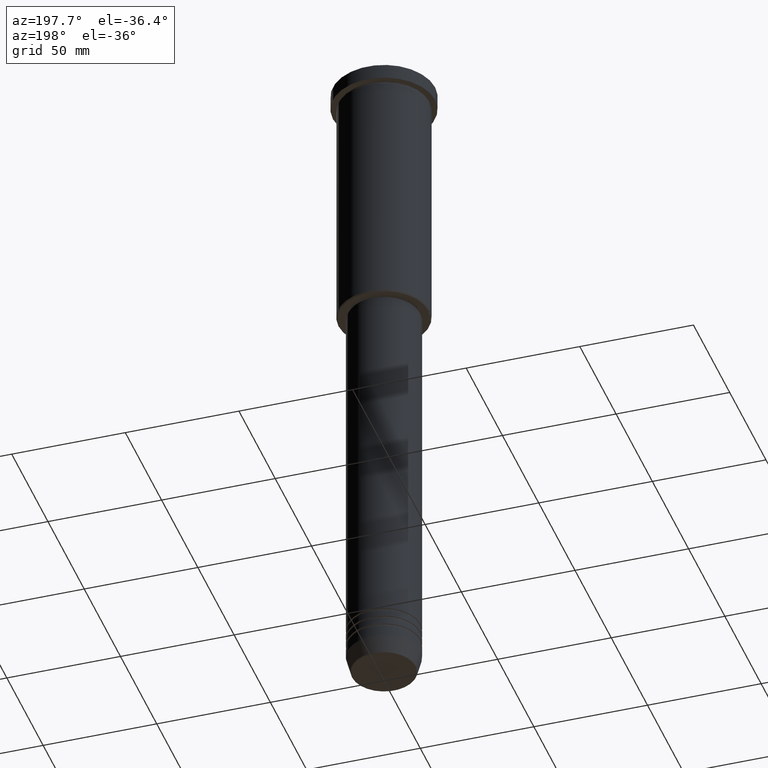
[diagram: clean part render]
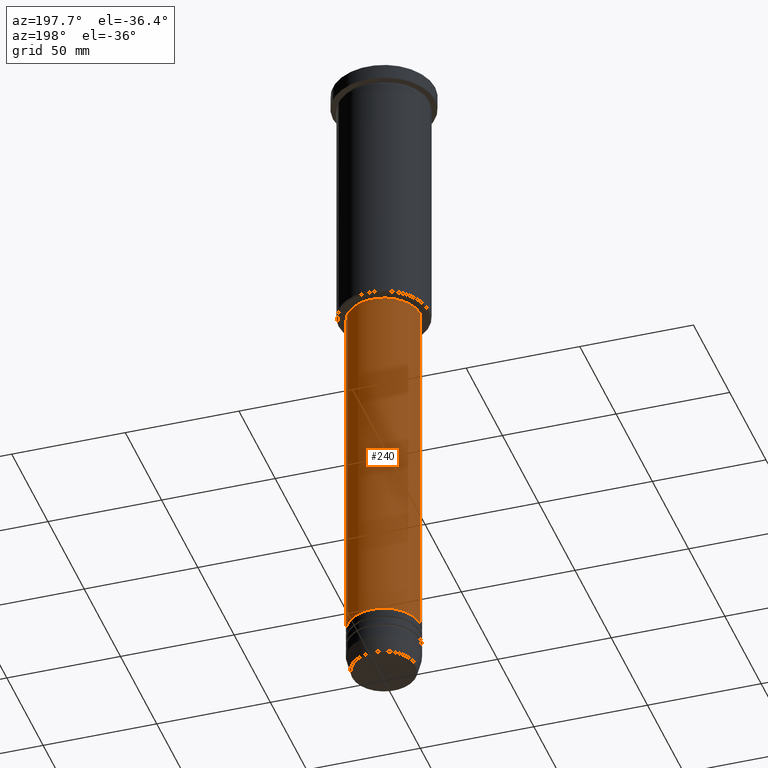
[diagram: same view with one face highlighted and labeled with its STEP entity id]
A machine part, auxiliary view. The second image highlights one B-rep face of the part: STEP entity #240.
In plain terms, the highlighted cylindrical surface (partial cylindrical patch) has radius 16 mm, axis along (-0, -0, 1).
Its self-contained STEP definition (entity closure, byte-faithful):
#18 = EDGE_CURVE ( 'NONE', #980, #1167, #511, .T. ) ;
#46 = CARTESIAN_POINT ( 'NONE',  ( 0.000000000000000000, 0.000000000000000000, -117.0000000000000000 ) ) ;
#75 = DIRECTION ( 'NONE',  ( 1.000000000000000000, 0.000000000000000000, 0.000000000000000000 ) ) ;
#84 = ORIENTED_EDGE ( 'NONE', *, *, #306, .T. ) ;
#91 = CARTESIAN_POINT ( 'NONE',  ( 0.000000000000000000, 0.000000000000000000, 0.000000000000000000 ) ) ;
#109 = CARTESIAN_POINT ( 'NONE',  ( 16.00000000000000000, 0.000000000000000000, 0.000000000000000000 ) ) ;
#130 = ORIENTED_EDGE ( 'NONE', *, *, #360, .T. ) ;
#154 = AXIS2_PLACEMENT_3D ( 'NONE', #46, #162, #281 ) ;
#158 = CARTESIAN_POINT ( 'NONE',  ( 0.000000000000000000, 0.000000000000000000, -278.4999999999999432 ) ) ;
#162 = DIRECTION ( 'NONE',  ( -0.000000000000000000, -0.000000000000000000, 1.000000000000000000 ) ) ;
#240 = ADVANCED_FACE ( 'NONE', ( #352 ), #645, .T. ) ;
#241 = CARTESIAN_POINT ( 'NONE',  ( -16.00000000000000000, 1.959434878635765131E-15, -278.4999999999999432 ) ) ;
#276 = VERTEX_POINT ( 'NONE', #532 ) ;
#281 = DIRECTION ( 'NONE',  ( 1.000000000000000000, 0.000000000000000000, 0.000000000000000000 ) ) ;
#305 = DIRECTION ( 'NONE',  ( -0.000000000000000000, -0.000000000000000000, 1.000000000000000000 ) ) ;
#306 = EDGE_CURVE ( 'NONE', #886, #1167, #1171, .T. ) ;
#335 = EDGE_LOOP ( 'NONE', ( #130, #84, #629, #873 ) ) ;
#336 = CIRCLE ( 'NONE', #821, 16.00000000000000000 ) ;
#352 = FACE_OUTER_BOUND ( 'NONE', #335, .T. ) ;
#353 = VECTOR ( 'NONE', #603, 1000.000000000000000 ) ;
#360 = EDGE_CURVE ( 'NONE', #276, #886, #336, .T. ) ;
#430 = DIRECTION ( 'NONE',  ( 1.000000000000000000, 0.000000000000000000, 0.000000000000000000 ) ) ;
#453 = VECTOR ( 'NONE', #305, 1000.000000000000000 ) ;
#511 = CIRCLE ( 'NONE', #154, 16.00000000000000000 ) ;
#532 = CARTESIAN_POINT ( 'NONE',  ( 16.00000000000000000, 0.000000000000000000, -278.4999999999999432 ) ) ;
#539 = EDGE_CURVE ( 'NONE', #276, #980, #752, .T. ) ;
#543 = CARTESIAN_POINT ( 'NONE',  ( -16.00000000000000000, 1.959434878635765131E-15, -117.0000000000000000 ) ) ;
#548 = DIRECTION ( 'NONE',  ( -0.000000000000000000, -0.000000000000000000, 1.000000000000000000 ) ) ;
#603 = DIRECTION ( 'NONE',  ( -0.000000000000000000, -0.000000000000000000, 1.000000000000000000 ) ) ;
#629 = ORIENTED_EDGE ( 'NONE', *, *, #18, .F. ) ;
#645 = CYLINDRICAL_SURFACE ( 'NONE', #653, 16.00000000000000000 ) ;
#653 = AXIS2_PLACEMENT_3D ( 'NONE', #91, #548, #75 ) ;
#752 = LINE ( 'NONE', #109, #453 ) ;
#812 = CARTESIAN_POINT ( 'NONE',  ( 16.00000000000000000, 0.000000000000000000, -117.0000000000000000 ) ) ;
#821 = AXIS2_PLACEMENT_3D ( 'NONE', #158, #888, #430 ) ;
#873 = ORIENTED_EDGE ( 'NONE', *, *, #539, .F. ) ;
#886 = VERTEX_POINT ( 'NONE', #241 ) ;
#888 = DIRECTION ( 'NONE',  ( -0.000000000000000000, -0.000000000000000000, 1.000000000000000000 ) ) ;
#980 = VERTEX_POINT ( 'NONE', #812 ) ;
#1159 = CARTESIAN_POINT ( 'NONE',  ( -16.00000000000000000, 1.959434878635765131E-15, 0.000000000000000000 ) ) ;
#1167 = VERTEX_POINT ( 'NONE', #543 ) ;
#1171 = LINE ( 'NONE', #1159, #353 ) ;